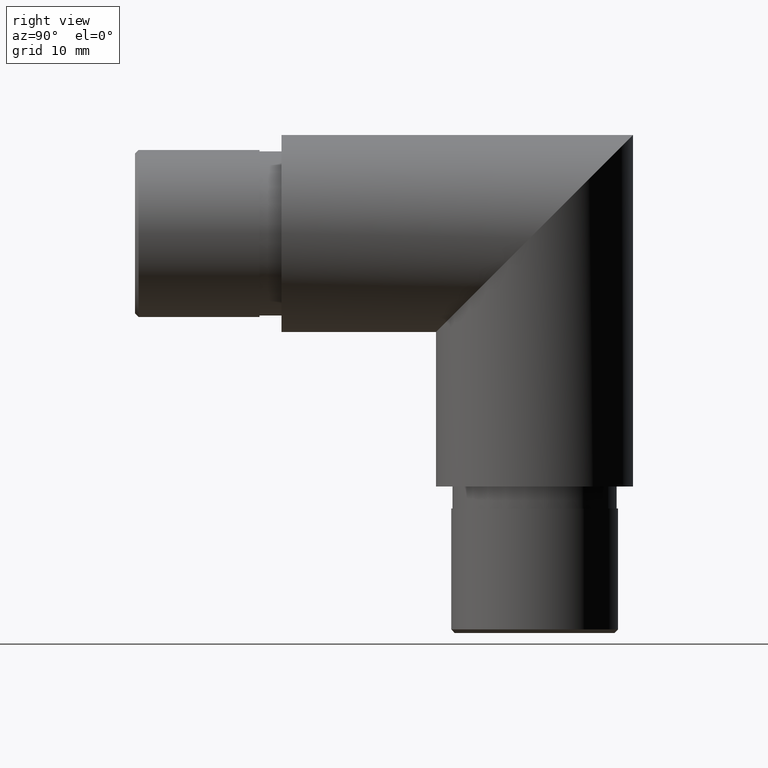
[diagram: clean part render]
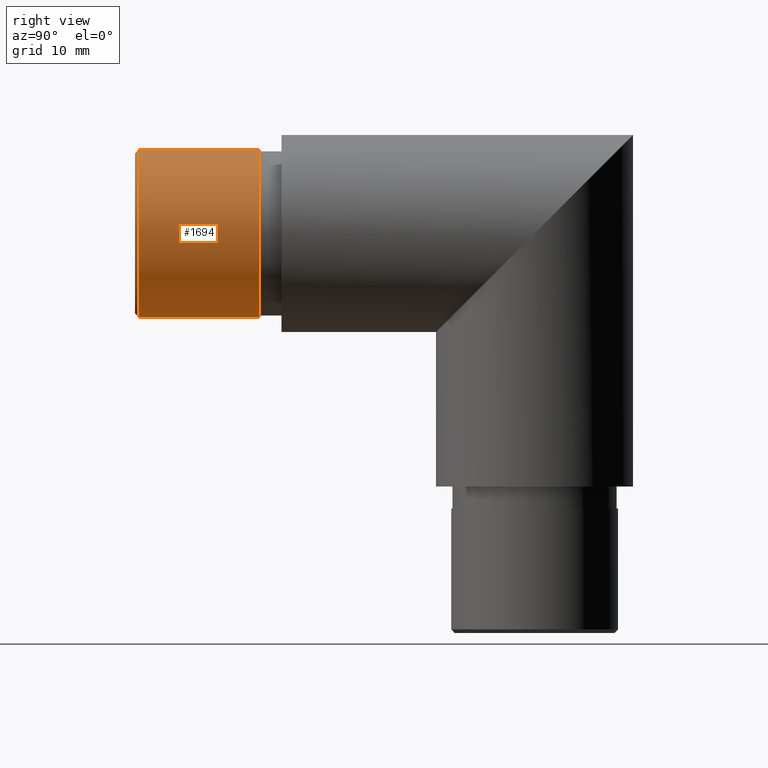
[diagram: same view with one face highlighted and labeled with its STEP entity id]
A machine part, right view. The second image highlights one B-rep face of the part: STEP entity #1694.
In plain terms, the highlighted cylindrical surface (bore or boss wall) has radius 11.4 mm, axis along (-0, 1, 0).
Its self-contained STEP definition (entity closure, byte-faithful):
#697 = DIRECTION ( 'NONE',  ( 0.0000000000000000000, 1.000000000000000000, 0.0000000000000000000 ) ) ;
#1483 = DIRECTION ( 'NONE',  ( -0.0000000000000000000, 1.000000000000000000, 0.0000000000000000000 ) ) ;
#1694 = ADVANCED_FACE ( 'NONE', ( #5528, #9900 ), #6855, .T. ) ;
#1720 = ORIENTED_EDGE ( 'NONE', *, *, #2291, .T. ) ;
#2291 = EDGE_CURVE ( 'NONE', #3756, #3756, #5084, .T. ) ;
#2381 = EDGE_LOOP ( 'NONE', ( #1720 ) ) ;
#2949 = CARTESIAN_POINT ( 'NONE',  ( 0.0000000000000000000, -19.49999999999999300, -11.40000000000000000 ) ) ;
#3356 = DIRECTION ( 'NONE',  ( 0.0000000000000000000, 0.0000000000000000000, 1.000000000000000000 ) ) ;
#3756 = VERTEX_POINT ( 'NONE', #2949 ) ;
#4057 = CARTESIAN_POINT ( 'NONE',  ( 0.0000000000000000000, -3.000000000000000000, 0.0000000000000000000 ) ) ;
#4840 = CARTESIAN_POINT ( 'NONE',  ( 0.0000000000000000000, -3.000000000000000000, -11.40000000000000000 ) ) ;
#4931 = VERTEX_POINT ( 'NONE', #4840 ) ;
#5067 = CARTESIAN_POINT ( 'NONE',  ( 0.0000000000000000000, -20.00000000000000000, 0.0000000000000000000 ) ) ;
#5084 = CIRCLE ( 'NONE', #7710, 11.40000000000000000 ) ;
#5528 = FACE_OUTER_BOUND ( 'NONE', #2381, .T. ) ;
#5587 = ORIENTED_EDGE ( 'NONE', *, *, #8057, .T. ) ;
#6855 = CYLINDRICAL_SURFACE ( 'NONE', #7733, 11.40000000000000000 ) ;
#7704 = DIRECTION ( 'NONE',  ( 0.0000000000000000000, 0.0000000000000000000, -1.000000000000000000 ) ) ;
#7710 = AXIS2_PLACEMENT_3D ( 'NONE', #11079, #697, #10961 ) ;
#7733 = AXIS2_PLACEMENT_3D ( 'NONE', #5067, #1483, #3356 ) ;
#8057 = EDGE_CURVE ( 'NONE', #4931, #4931, #10029, .T. ) ;
#9516 = DIRECTION ( 'NONE',  ( 0.0000000000000000000, -1.000000000000000000, 0.0000000000000000000 ) ) ;
#9900 = FACE_OUTER_BOUND ( 'NONE', #10927, .T. ) ;
#10029 = CIRCLE ( 'NONE', #11227, 11.40000000000000000 ) ;
#10927 = EDGE_LOOP ( 'NONE', ( #5587 ) ) ;
#10961 = DIRECTION ( 'NONE',  ( 0.0000000000000000000, 0.0000000000000000000, -1.000000000000000000 ) ) ;
#11079 = CARTESIAN_POINT ( 'NONE',  ( 0.0000000000000000000, -19.49999999999999300, 0.0000000000000000000 ) ) ;
#11227 = AXIS2_PLACEMENT_3D ( 'NONE', #4057, #9516, #7704 ) ;